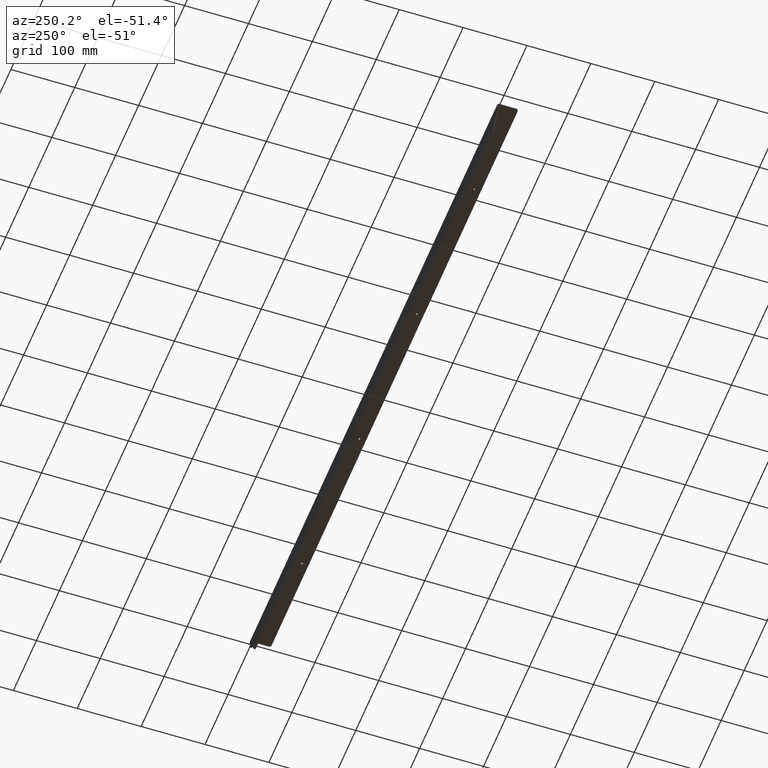
[diagram: clean part render]
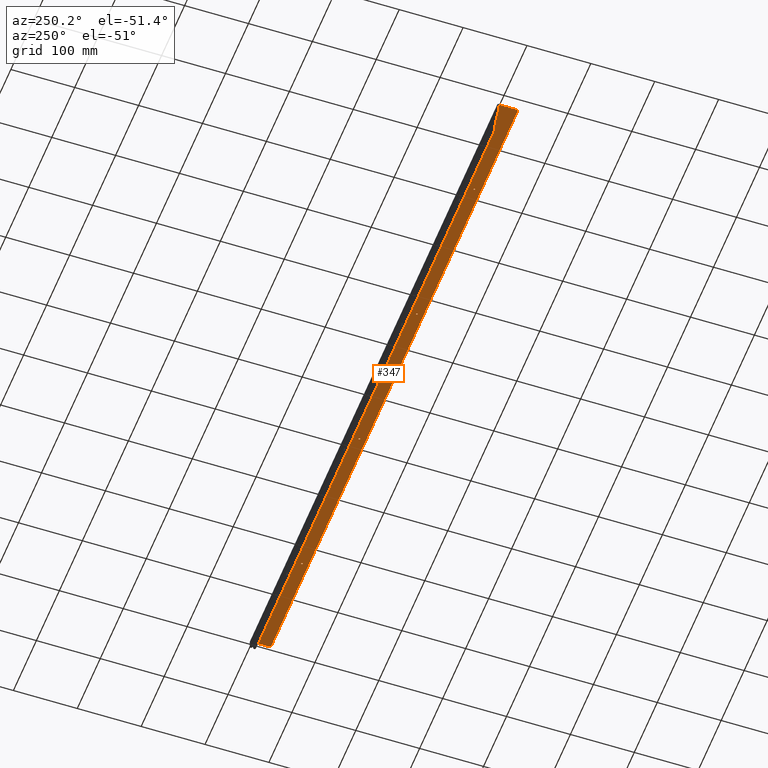
[diagram: same view with one face highlighted and labeled with its STEP entity id]
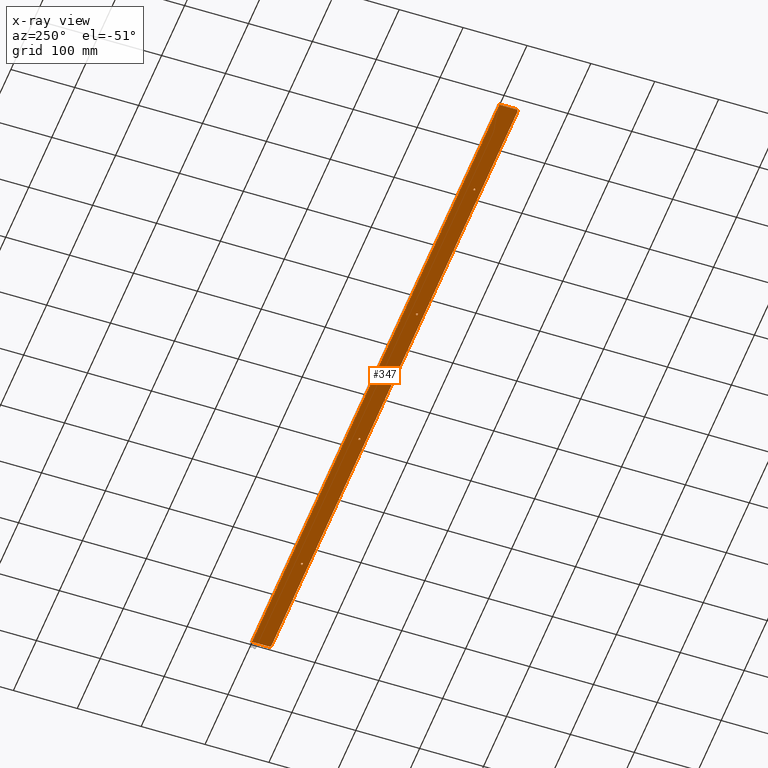
[diagram: x-ray of the same camera — body ghosted, the highlighted face saturated]
A machine part, auxiliary view. The second image highlights one B-rep face of the part: STEP entity #347.
The next image is the same camera in x-ray: the body ghosted, the highlighted face saturated — about 0% of this face is hidden behind the body in this view.
In plain terms, the highlighted planar face has unit normal (0, 0, 1).
Its self-contained STEP definition (entity closure, byte-faithful):
#5 = AXIS2_PLACEMENT_3D ( 'NONE', #878, #1237, #1048 ) ;
#20 = DIRECTION ( 'NONE',  ( 1.000000000000000000, 0.000000000000000000, 0.000000000000000000 ) ) ;
#25 = VERTEX_POINT ( 'NONE', #908 ) ;
#28 = DIRECTION ( 'NONE',  ( 0.000000000000000000, 0.000000000000000000, 1.000000000000000000 ) ) ;
#41 = CARTESIAN_POINT ( 'NONE',  ( -534.9999999999998863, 1058.305264068951146, 1255.499999999999773 ) ) ;
#53 = CARTESIAN_POINT ( 'NONE',  ( 537.9999999999998863, 1055.305264068951828, 1255.499999999999545 ) ) ;
#63 = FACE_BOUND ( 'NONE', #1024, .T. ) ;
#69 = AXIS2_PLACEMENT_3D ( 'NONE', #41, #670, #289 ) ;
#71 = DIRECTION ( 'NONE',  ( -1.000000000000000000, -0.000000000000000000, -0.000000000000000000 ) ) ;
#74 = ORIENTED_EDGE ( 'NONE', *, *, #1025, .T. ) ;
#78 = ORIENTED_EDGE ( 'NONE', *, *, #746, .T. ) ;
#81 = CARTESIAN_POINT ( 'NONE',  ( 605.0096185640381918, 1055.305264068951374, 1255.499999999999545 ) ) ;
#106 = EDGE_LOOP ( 'NONE', ( #893, #1070, #1066, #482, #711, #677 ) ) ;
#107 = ORIENTED_EDGE ( 'NONE', *, *, #1106, .T. ) ;
#131 = CARTESIAN_POINT ( 'NONE',  ( 376.5999999999999659, 1065.305264068951374, 1255.499999999999773 ) ) ;
#141 = EDGE_CURVE ( 'NONE', #363, #794, #797, .T. ) ;
#155 = VERTEX_POINT ( 'NONE', #727 ) ;
#174 = CARTESIAN_POINT ( 'NONE',  ( -537.9999999999998863, 1055.305264068942279, 1255.499999999999545 ) ) ;
#177 = VERTEX_POINT ( 'NONE', #1029 ) ;
#185 = EDGE_LOOP ( 'NONE', ( #975, #78 ) ) ;
#210 = DIRECTION ( 'NONE',  ( 0.000000000000000000, 0.000000000000000000, 1.000000000000000000 ) ) ;
#222 = CARTESIAN_POINT ( 'NONE',  ( 537.9999999999997726, 1058.305264068951146, 1255.499999999999773 ) ) ;
#226 = EDGE_CURVE ( 'NONE', #841, #1232, #565, .T. ) ;
#251 = VECTOR ( 'NONE', #256, 1000.000000000000000 ) ;
#256 = DIRECTION ( 'NONE',  ( -7.930164461608254918E-15, 1.000000000000000000, 0.000000000000000000 ) ) ;
#263 = EDGE_CURVE ( 'NONE', #948, #821, #1044, .T. ) ;
#276 = VECTOR ( 'NONE', #339, 1000.000000000000000 ) ;
#289 = DIRECTION ( 'NONE',  ( 1.000000000000000000, 0.000000000000000000, 0.000000000000000000 ) ) ;
#316 = FACE_OUTER_BOUND ( 'NONE', #106, .T. ) ;
#339 = DIRECTION ( 'NONE',  ( -1.000000000000000000, -0.000000000000000000, -0.000000000000000000 ) ) ;
#347 = ADVANCED_FACE ( 'NONE', ( #966, #63, #1269, #775, #316 ), #588, .F. ) ;
#362 = VERTEX_POINT ( 'NONE', #900 ) ;
#363 = VERTEX_POINT ( 'NONE', #989 ) ;
#378 = AXIS2_PLACEMENT_3D ( 'NONE', #480, #472, #1153 ) ;
#385 = DIRECTION ( 'NONE',  ( 1.000000000000000000, 0.000000000000000000, 0.000000000000000000 ) ) ;
#397 = DIRECTION ( 'NONE',  ( 1.000000000000000000, 0.000000000000000000, -0.000000000000000000 ) ) ;
#411 = ORIENTED_EDGE ( 'NONE', *, *, #634, .T. ) ;
#415 = EDGE_CURVE ( 'NONE', #1100, #563, #1012, .T. ) ;
#421 = CARTESIAN_POINT ( 'NONE',  ( -126.6000000000001080, 1065.305264068951374, 1255.499999999999773 ) ) ;
#427 = DIRECTION ( 'NONE',  ( 0.000000000000000000, 0.000000000000000000, 1.000000000000000000 ) ) ;
#434 = LINE ( 'NONE', #1228, #276 ) ;
#438 = EDGE_LOOP ( 'NONE', ( #74, #107 ) ) ;
#442 = DIRECTION ( 'NONE',  ( 1.000000000000000000, 0.000000000000000000, 0.000000000000000000 ) ) ;
#472 = DIRECTION ( 'NONE',  ( 0.000000000000000000, 0.000000000000000000, 1.000000000000000000 ) ) ;
#474 = DIRECTION ( 'NONE',  ( -7.930164461608254918E-15, -1.000000000000000000, 0.000000000000000000 ) ) ;
#476 = AXIS2_PLACEMENT_3D ( 'NONE', #1028, #522, #442 ) ;
#480 = CARTESIAN_POINT ( 'NONE',  ( 125.0000000000000000, 1065.305264068951374, 1255.499999999999773 ) ) ;
#482 = ORIENTED_EDGE ( 'NONE', *, *, #609, .T. ) ;
#496 = AXIS2_PLACEMENT_3D ( 'NONE', #925, #28, #1133 ) ;
#522 = DIRECTION ( 'NONE',  ( -0.000000000000000000, -0.000000000000000000, -1.000000000000000000 ) ) ;
#528 = CARTESIAN_POINT ( 'NONE',  ( 125.0000000000000000, 1065.305264068951374, 1255.499999999999773 ) ) ;
#563 = VERTEX_POINT ( 'NONE', #421 ) ;
#564 = CARTESIAN_POINT ( 'NONE',  ( 123.3999999999999631, 1065.305264068951374, 1255.499999999999773 ) ) ;
#565 = LINE ( 'NONE', #53, #1094 ) ;
#576 = CIRCLE ( 'NONE', #5, 1.599999999999990319 ) ;
#588 = PLANE ( 'NONE',  #1264 ) ;
#596 = CARTESIAN_POINT ( 'NONE',  ( 534.9999999999998863, 1055.305264068951374, 1255.499999999999773 ) ) ;
#609 = EDGE_CURVE ( 'NONE', #1232, #948, #1032, .T. ) ;
#634 = EDGE_CURVE ( 'NONE', #177, #362, #969, .T. ) ;
#635 = CIRCLE ( 'NONE', #69, 2.999999999999891642 ) ;
#639 = DIRECTION ( 'NONE',  ( 1.000000000000000000, 0.000000000000000000, 0.000000000000000000 ) ) ;
#642 = DIRECTION ( 'NONE',  ( 1.000000000000000000, 0.000000000000000000, 0.000000000000000000 ) ) ;
#644 = VERTEX_POINT ( 'NONE', #131 ) ;
#646 = CARTESIAN_POINT ( 'NONE',  ( -123.3999999999998920, 1065.305264068951374, 1255.499999999999773 ) ) ;
#647 = EDGE_CURVE ( 'NONE', #841, #25, #434, .T. ) ;
#653 = CARTESIAN_POINT ( 'NONE',  ( -534.9999999999998863, 1055.305264068951374, 1255.499999999999773 ) ) ;
#670 = DIRECTION ( 'NONE',  ( -0.000000000000000000, -0.000000000000000000, -1.000000000000000000 ) ) ;
#677 = ORIENTED_EDGE ( 'NONE', *, *, #1085, .T. ) ;
#678 = CARTESIAN_POINT ( 'NONE',  ( -125.0000000000000000, 1065.305264068951374, 1255.499999999999773 ) ) ;
#697 = CIRCLE ( 'NONE', #779, 1.599999999999990319 ) ;
#704 = ORIENTED_EDGE ( 'NONE', *, *, #1155, .T. ) ;
#711 = ORIENTED_EDGE ( 'NONE', *, *, #263, .T. ) ;
#727 = CARTESIAN_POINT ( 'NONE',  ( 373.4000000000000341, 1065.305264068951374, 1255.499999999999773 ) ) ;
#734 = VERTEX_POINT ( 'NONE', #845 ) ;
#737 = DIRECTION ( 'NONE',  ( 0.000000000000000000, 0.000000000000000000, 1.000000000000000000 ) ) ;
#746 = EDGE_CURVE ( 'NONE', #794, #363, #1199, .T. ) ;
#775 = FACE_BOUND ( 'NONE', #438, .T. ) ;
#779 = AXIS2_PLACEMENT_3D ( 'NONE', #1233, #923, #20 ) ;
#781 = EDGE_CURVE ( 'NONE', #734, #25, #1163, .T. ) ;
#782 = AXIS2_PLACEMENT_3D ( 'NONE', #678, #737, #639 ) ;
#787 = ORIENTED_EDGE ( 'NONE', *, *, #415, .T. ) ;
#794 = VERTEX_POINT ( 'NONE', #564 ) ;
#797 = CIRCLE ( 'NONE', #928, 1.600000000000018074 ) ;
#821 = VERTEX_POINT ( 'NONE', #653 ) ;
#841 = VERTEX_POINT ( 'NONE', #994 ) ;
#844 = AXIS2_PLACEMENT_3D ( 'NONE', #1188, #1177, #984 ) ;
#845 = CARTESIAN_POINT ( 'NONE',  ( -537.9999999999998863, 1058.305264068951146, 1255.499999999999773 ) ) ;
#866 = CIRCLE ( 'NONE', #1158, 1.599999999999990319 ) ;
#869 = EDGE_CURVE ( 'NONE', #362, #177, #866, .T. ) ;
#878 = CARTESIAN_POINT ( 'NONE',  ( 375.0000000000000000, 1065.305264068951374, 1255.499999999999773 ) ) ;
#893 = ORIENTED_EDGE ( 'NONE', *, *, #781, .T. ) ;
#900 = CARTESIAN_POINT ( 'NONE',  ( -376.5999999999999659, 1065.305264068951374, 1255.499999999999773 ) ) ;
#908 = CARTESIAN_POINT ( 'NONE',  ( -538.0000000000001137, 1084.305264068951146, 1255.499999999999545 ) ) ;
#923 = DIRECTION ( 'NONE',  ( 0.000000000000000000, 0.000000000000000000, 1.000000000000000000 ) ) ;
#925 = CARTESIAN_POINT ( 'NONE',  ( -375.0000000000000000, 1065.305264068951374, 1255.499999999999773 ) ) ;
#928 = AXIS2_PLACEMENT_3D ( 'NONE', #528, #427, #642 ) ;
#942 = EDGE_LOOP ( 'NONE', ( #411, #1271 ) ) ;
#948 = VERTEX_POINT ( 'NONE', #596 ) ;
#966 = FACE_BOUND ( 'NONE', #942, .T. ) ;
#969 = CIRCLE ( 'NONE', #496, 1.599999999999990319 ) ;
#972 = CARTESIAN_POINT ( 'NONE',  ( 605.0096185640381918, 1055.305264068951374, 1255.499999999999545 ) ) ;
#975 = ORIENTED_EDGE ( 'NONE', *, *, #141, .T. ) ;
#976 = CIRCLE ( 'NONE', #782, 1.600000000000101341 ) ;
#984 = DIRECTION ( 'NONE',  ( 1.000000000000000000, 0.000000000000000000, 0.000000000000000000 ) ) ;
#989 = CARTESIAN_POINT ( 'NONE',  ( 126.6000000000000227, 1065.305264068951374, 1255.499999999999773 ) ) ;
#994 = CARTESIAN_POINT ( 'NONE',  ( 538.0000000000000000, 1084.305264068951146, 1255.499999999999545 ) ) ;
#1012 = CIRCLE ( 'NONE', #844, 1.600000000000101341 ) ;
#1024 = EDGE_LOOP ( 'NONE', ( #787, #704 ) ) ;
#1025 = EDGE_CURVE ( 'NONE', #644, #155, #697, .T. ) ;
#1028 = CARTESIAN_POINT ( 'NONE',  ( 534.9999999999998863, 1058.305264068951146, 1255.499999999999773 ) ) ;
#1029 = CARTESIAN_POINT ( 'NONE',  ( -373.4000000000000341, 1065.305264068951374, 1255.499999999999773 ) ) ;
#1032 = CIRCLE ( 'NONE', #476, 2.999999999999891642 ) ;
#1044 = LINE ( 'NONE', #972, #1261 ) ;
#1048 = DIRECTION ( 'NONE',  ( 1.000000000000000000, 0.000000000000000000, 0.000000000000000000 ) ) ;
#1066 = ORIENTED_EDGE ( 'NONE', *, *, #226, .T. ) ;
#1070 = ORIENTED_EDGE ( 'NONE', *, *, #647, .F. ) ;
#1085 = EDGE_CURVE ( 'NONE', #821, #734, #635, .T. ) ;
#1094 = VECTOR ( 'NONE', #474, 1000.000000000000000 ) ;
#1100 = VERTEX_POINT ( 'NONE', #646 ) ;
#1106 = EDGE_CURVE ( 'NONE', #155, #644, #576, .T. ) ;
#1133 = DIRECTION ( 'NONE',  ( 1.000000000000000000, 0.000000000000000000, 0.000000000000000000 ) ) ;
#1153 = DIRECTION ( 'NONE',  ( 1.000000000000000000, 0.000000000000000000, 0.000000000000000000 ) ) ;
#1155 = EDGE_CURVE ( 'NONE', #563, #1100, #976, .T. ) ;
#1158 = AXIS2_PLACEMENT_3D ( 'NONE', #1274, #1183, #385 ) ;
#1163 = LINE ( 'NONE', #174, #251 ) ;
#1177 = DIRECTION ( 'NONE',  ( 0.000000000000000000, 0.000000000000000000, 1.000000000000000000 ) ) ;
#1183 = DIRECTION ( 'NONE',  ( 0.000000000000000000, 0.000000000000000000, 1.000000000000000000 ) ) ;
#1188 = CARTESIAN_POINT ( 'NONE',  ( -125.0000000000000000, 1065.305264068951374, 1255.499999999999773 ) ) ;
#1199 = CIRCLE ( 'NONE', #378, 1.600000000000018074 ) ;
#1228 = CARTESIAN_POINT ( 'NONE',  ( 605.0096185640381918, 1084.305264068951146, 1255.499999999999545 ) ) ;
#1232 = VERTEX_POINT ( 'NONE', #222 ) ;
#1233 = CARTESIAN_POINT ( 'NONE',  ( 375.0000000000000000, 1065.305264068951374, 1255.499999999999773 ) ) ;
#1237 = DIRECTION ( 'NONE',  ( 0.000000000000000000, 0.000000000000000000, 1.000000000000000000 ) ) ;
#1261 = VECTOR ( 'NONE', #71, 1000.000000000000000 ) ;
#1264 = AXIS2_PLACEMENT_3D ( 'NONE', #81, #210, #397 ) ;
#1269 = FACE_BOUND ( 'NONE', #185, .T. ) ;
#1271 = ORIENTED_EDGE ( 'NONE', *, *, #869, .T. ) ;
#1274 = CARTESIAN_POINT ( 'NONE',  ( -375.0000000000000000, 1065.305264068951374, 1255.499999999999773 ) ) ;